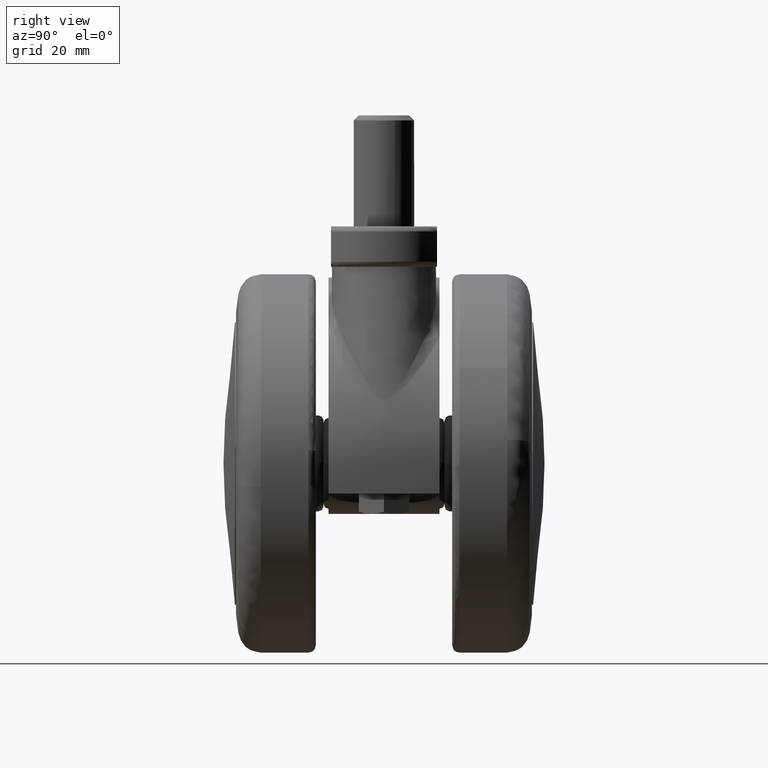
[diagram: clean part render]
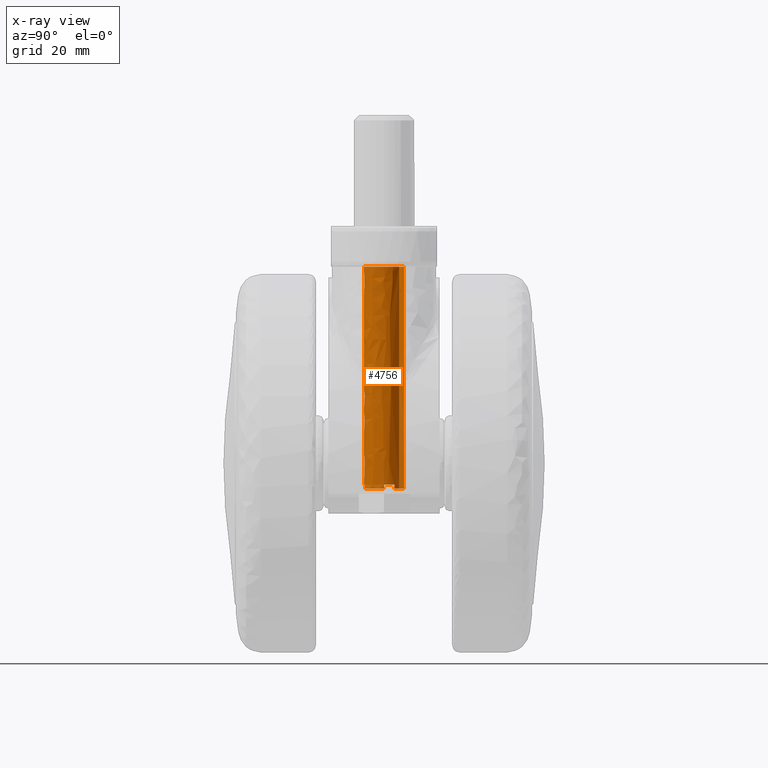
[diagram: x-ray — body ghosted, one internal face saturated and labeled with its STEP entity id]
A machine part, right view, then the same camera in x-ray: the body is ghosted and one INTERNAL B-rep face — a face not visible from any outside direction — is saturated and labeled: STEP entity #4756.
In plain terms, the highlighted face is a freeform B-spline surface patch.
Its self-contained STEP definition (entity closure, byte-faithful):
#4520=CARTESIAN_POINT('',(22.603179484488194,3.037014417407290,40.100000000000001));
#4521=CARTESIAN_POINT('',(23.920511686677187,1.907862002674398,40.100000000000009));
#4522=CARTESIAN_POINT('',(23.996192886327432,0.174477549461344,40.100000000000009));
#4523=CARTESIAN_POINT('',(24.170670435788775,-3.821715336866087,40.100000000000001));
#4524=CARTESIAN_POINT('',(20.174477549461340,-3.996192886327430,40.100000000000009));
#4525=CARTESIAN_POINT('',(16.178284663133912,-4.170670435788773,40.100000000000001));
#4526=CARTESIAN_POINT('',(16.003807113672568,-0.174477549461344,40.100000000000009));
#4527=CARTESIAN_POINT('',(15.829329564211232,3.821715336866087,40.100000000000001));
#4528=CARTESIAN_POINT('',(19.825522450538660,3.996192886327430,40.100000000000009));
#4529=CARTESIAN_POINT('',(22.603179484488194,3.037014417407290,-6.127500000000005));
#4530=CARTESIAN_POINT('',(23.920511686677187,1.907862002674398,-6.127500000000006));
#4531=CARTESIAN_POINT('',(23.996192886327432,0.174477549461344,-6.127500000000005));
#4532=CARTESIAN_POINT('',(24.170670435788775,-3.821715336866087,-6.127500000000005));
#4533=CARTESIAN_POINT('',(20.174477549461340,-3.996192886327430,-6.127500000000005));
#4534=CARTESIAN_POINT('',(16.178284663133912,-4.170670435788773,-6.127500000000005));
#4535=CARTESIAN_POINT('',(16.003807113672568,-0.174477549461344,-6.127500000000005));
#4536=CARTESIAN_POINT('',(15.829329564211232,3.821715336866087,-6.127500000000005));
#4537=CARTESIAN_POINT('',(19.825522450538660,3.996192886327430,-6.127500000000005));
#4545=(BOUNDED_SURFACE()B_SPLINE_SURFACE(2,1,((#4520,#4529),(#4521,#4530),(#4522,#4531),(#4523,#4532),(#4524,#4533),(#4525,#4534),(#4526,#4535),(#4527,#4536),(#4528,#4537)),.UNSPECIFIED.,.F.,.F.,.U.)B_SPLINE_SURFACE_WITH_KNOTS((3,2,2,2,3),(2,2),(0.0,3.446256838944149,10.073673836913670,16.701090834883189,23.328507832852701),(0.0,46.227500000000020),.UNSPECIFIED.)GEOMETRIC_REPRESENTATION_ITEM()RATIONAL_B_SPLINE_SURFACE(((0.853787705168325,0.853787705168325),(0.847695526217005,0.847695526217005),(1.0,1.0),(0.707106781186548,0.707106781186548),(1.0,1.0),(0.707106781186548,0.707106781186548),(1.0,1.0),(0.707106781186548,0.707106781186548),(1.0,1.0)))REPRESENTATION_ITEM('')SURFACE());
#4546=CARTESIAN_POINT('',(22.603179484484180,3.037014417410734,-4.999999999999999));
#4547=VERTEX_POINT('',#4546);
#4548=CARTESIAN_POINT('',(23.450066424360351,2.024115033169200,-5.0));
#4549=VERTEX_POINT('',#4548);
#4550=CARTESIAN_POINT('',(22.603179484484187,3.037014417410734,-4.999999999999999));
#4551=CARTESIAN_POINT('',(23.111367996836709,2.601420202902212,-5.000000000000001));
#4552=CARTESIAN_POINT('',(23.450066424360330,2.024115033169190,-5.0));
#4560=(BOUNDED_CURVE()B_SPLINE_CURVE(2,(#4550,#4551,#4552),.UNSPECIFIED.,.F.,.U.)B_SPLINE_CURVE_WITH_KNOTS((3,3),(0.838826426035904,1.0),.UNSPECIFIED.)CURVE()GEOMETRIC_REPRESENTATION_ITEM()RATIONAL_B_SPLINE_CURVE((0.942228882933247,0.957374106159129,1.0))REPRESENTATION_ITEM(''));
#4561=EDGE_CURVE('',#4547,#4549,#4560,.T.);
#4562=ORIENTED_EDGE('',*,*,#4561,.F.);
#4563=CARTESIAN_POINT('',(22.603176855445980,3.037016670889109,39.0));
#4564=VERTEX_POINT('',#4563);
#4565=CARTESIAN_POINT('',(22.603176855445980,3.037016670889109,39.0));
#4566=CARTESIAN_POINT('',(22.603179484484180,3.037014417410734,-4.999999999999999));
#4567=QUASI_UNIFORM_CURVE('',1,(#4565,#4566),.UNSPECIFIED.,.F.,.U.);
#4568=EDGE_CURVE('',#4564,#4547,#4567,.T.);
#4569=ORIENTED_EDGE('',*,*,#4568,.F.);
#4570=CARTESIAN_POINT('',(24.0,0.0,39.0));
#4571=VERTEX_POINT('',#4570);
#4572=CARTESIAN_POINT('',(24.0,0.0,39.0));
#4573=CARTESIAN_POINT('',(24.0,1.839730625046044,38.999999999999986));
#4574=CARTESIAN_POINT('',(22.603176855445973,3.037016670889109,38.999999999999993));
#4582=(BOUNDED_CURVE()B_SPLINE_CURVE(2,(#4572,#4573,#4574),.UNSPECIFIED.,.F.,.U.)B_SPLINE_CURVE_WITH_KNOTS((3,3),(0.0,0.136589111455534),.UNSPECIFIED.)CURVE()GEOMETRIC_REPRESENTATION_ITEM()RATIONAL_B_SPLINE_CURVE((1.0,0.839975901963677,0.854812198825391))REPRESENTATION_ITEM(''));
#4583=EDGE_CURVE('',#4571,#4564,#4582,.T.);
#4584=ORIENTED_EDGE('',*,*,#4583,.F.);
#4585=CARTESIAN_POINT('',(16.0,0.0,39.0));
#4586=VERTEX_POINT('',#4585);
#4587=CARTESIAN_POINT('',(16.0,0.0,39.0));
#4588=CARTESIAN_POINT('',(15.999999999999998,-4.000000000000000,39.000000000000007));
#4589=CARTESIAN_POINT('',(20.0,-4.0,39.0));
#4590=CARTESIAN_POINT('',(23.999999999999996,-4.000000000000000,39.000000000000007));
#4591=CARTESIAN_POINT('',(24.0,0.0,39.0));
#4599=(BOUNDED_CURVE()B_SPLINE_CURVE(2,(#4587,#4588,#4589,#4590,#4591),.UNSPECIFIED.,.F.,.U.)B_SPLINE_CURVE_WITH_KNOTS((3,2,3),(0.500000000000000,0.750000000000000,1.0),.UNSPECIFIED.)CURVE()GEOMETRIC_REPRESENTATION_ITEM()RATIONAL_B_SPLINE_CURVE((1.0,0.707106781186548,1.0,0.707106781186548,1.0))REPRESENTATION_ITEM(''));
#4600=EDGE_CURVE('',#4586,#4571,#4599,.T.);
#4601=ORIENTED_EDGE('',*,*,#4600,.F.);
#4602=CARTESIAN_POINT('',(19.825522450356001,3.996192886319456,39.0));
#4603=VERTEX_POINT('',#4602);
#4604=CARTESIAN_POINT('',(19.825522450356001,3.996192886319455,39.0));
#4605=CARTESIAN_POINT('',(16.000000000000004,3.829166968668858,39.000000000000007));
#4606=CARTESIAN_POINT('',(16.0,0.0,39.0));
#4614=(BOUNDED_CURVE()B_SPLINE_CURVE(2,(#4604,#4605,#4606),.UNSPECIFIED.,.F.,.U.)B_SPLINE_CURVE_WITH_KNOTS((3,3),(0.257645461446137,0.500000000000000),.UNSPECIFIED.)CURVE()GEOMETRIC_REPRESENTATION_ITEM()RATIONAL_B_SPLINE_CURVE((0.982633425852628,0.716063996435640,1.0))REPRESENTATION_ITEM(''));
#4615=EDGE_CURVE('',#4603,#4586,#4614,.T.);
#4616=ORIENTED_EDGE('',*,*,#4615,.F.);
#4617=CARTESIAN_POINT('',(19.825522450530720,3.996192886327084,-4.999999999999999));
#4618=VERTEX_POINT('',#4617);
#4619=CARTESIAN_POINT('',(19.825522450356001,3.996192886319456,39.0));
#4620=CARTESIAN_POINT('',(19.825522450530720,3.996192886327084,-4.999999999999999));
#4621=QUASI_UNIFORM_CURVE('',1,(#4619,#4620),.UNSPECIFIED.,.F.,.U.);
#4622=EDGE_CURVE('',#4603,#4618,#4621,.T.);
#4623=ORIENTED_EDGE('',*,*,#4622,.T.);
#4624=CARTESIAN_POINT('',(16.549933575639699,2.024115033169200,-5.0));
#4625=VERTEX_POINT('',#4624);
#4626=CARTESIAN_POINT('',(16.549933575639681,2.024115033169212,-5.0));
#4627=CARTESIAN_POINT('',(17.651234169029905,3.901261409793176,-4.999999999999999));
#4628=CARTESIAN_POINT('',(19.825522450530720,3.996192886327084,-4.999999999999999));
#4636=(BOUNDED_CURVE()B_SPLINE_CURVE(2,(#4626,#4627,#4628),.UNSPECIFIED.,.F.,.U.)B_SPLINE_CURVE_WITH_KNOTS((3,3),(0.0,0.478173893076030),.UNSPECIFIED.)CURVE()GEOMETRIC_REPRESENTATION_ITEM()RATIONAL_B_SPLINE_CURVE((1.0,0.873536404868235,0.988959168202658))REPRESENTATION_ITEM(''));
#4637=EDGE_CURVE('',#4625,#4618,#4636,.T.);
#4638=ORIENTED_EDGE('',*,*,#4637,.F.);
#4639=CARTESIAN_POINT('',(16.549933575639699,2.024115033169200,-4.200000000000000));
#4640=VERTEX_POINT('',#4639);
#4641=CARTESIAN_POINT('',(16.549933575639699,2.024115033169200,-4.200000000000000));
#4642=CARTESIAN_POINT('',(16.549933575639699,2.024115033169200,-5.0));
#4643=QUASI_UNIFORM_CURVE('',1,(#4641,#4642),.UNSPECIFIED.,.F.,.U.);
#4644=EDGE_CURVE('',#4640,#4625,#4643,.T.);
#4645=ORIENTED_EDGE('',*,*,#4644,.F.);
#4646=CARTESIAN_POINT('',(16.0,0.0,-4.200000000000000));
#4647=VERTEX_POINT('',#4646);
#4648=CARTESIAN_POINT('',(16.0,0.0,-4.200000000000000));
#4649=CARTESIAN_POINT('',(15.999999999999998,1.086763482564792,-4.200000000000000));
#4650=CARTESIAN_POINT('',(16.549933575639681,2.024115033169212,-4.200000000000000));
#4658=(BOUNDED_CURVE()B_SPLINE_CURVE(2,(#4648,#4649,#4650),.UNSPECIFIED.,.F.,.U.)CURVE()GEOMETRIC_REPRESENTATION_ITEM()QUASI_UNIFORM_CURVE()RATIONAL_B_SPLINE_CURVE((1.0,0.965017255309479,1.0))REPRESENTATION_ITEM(''));
#4659=EDGE_CURVE('',#4647,#4640,#4658,.T.);
#4660=ORIENTED_EDGE('',*,*,#4659,.F.);
#4661=CARTESIAN_POINT('',(16.0,0.0,-5.0));
#4662=VERTEX_POINT('',#4661);
#4663=CARTESIAN_POINT('',(16.0,0.0,-4.200000000000000));
#4664=CARTESIAN_POINT('',(16.0,0.0,-5.0));
#4665=QUASI_UNIFORM_CURVE('',1,(#4663,#4664),.UNSPECIFIED.,.F.,.U.);
#4666=EDGE_CURVE('',#4647,#4662,#4665,.T.);
#4667=ORIENTED_EDGE('',*,*,#4666,.T.);
#4668=CARTESIAN_POINT('',(18.632064327445502,-3.758823219539975,-5.0));
#4669=VERTEX_POINT('',#4668);
#4670=CARTESIAN_POINT('',(18.632064327445502,-3.758823219539976,-5.0));
#4671=CARTESIAN_POINT('',(15.999999999999998,-2.800945055104374,-5.000000000000001));
#4672=CARTESIAN_POINT('',(16.0,0.0,-5.0));
#4680=(BOUNDED_CURVE()B_SPLINE_CURVE(2,(#4670,#4671,#4672),.UNSPECIFIED.,.F.,.U.)CURVE()GEOMETRIC_REPRESENTATION_ITEM()QUASI_UNIFORM_CURVE()RATIONAL_B_SPLINE_CURVE((1.0,0.819140988517430,1.0))REPRESENTATION_ITEM(''));
#4681=EDGE_CURVE('',#4669,#4662,#4680,.T.);
#4682=ORIENTED_EDGE('',*,*,#4681,.F.);
#4683=CARTESIAN_POINT('',(18.632064327445502,-3.758823219539975,-4.200000000000000));
#4684=VERTEX_POINT('',#4683);
#4685=CARTESIAN_POINT('',(18.632064327445502,-3.758823219539975,-4.200000000000000));
#4686=CARTESIAN_POINT('',(18.632064327445502,-3.758823219539975,-5.0));
#4687=QUASI_UNIFORM_CURVE('',1,(#4685,#4686),.UNSPECIFIED.,.F.,.U.);
#4688=EDGE_CURVE('',#4684,#4669,#4687,.T.);
#4689=ORIENTED_EDGE('',*,*,#4688,.F.);
#4690=CARTESIAN_POINT('',(21.367935672554999,-3.758823219539790,-4.200000000000000));
#4691=VERTEX_POINT('',#4690);
#4692=CARTESIAN_POINT('',(21.367935672554999,-3.758823219539793,-4.200000000000000));
#4693=CARTESIAN_POINT('',(20.000000000000284,-4.256651368126472,-4.199999999999999));
#4694=CARTESIAN_POINT('',(18.632064327445502,-3.758823219539976,-4.200000000000000));
#4702=(BOUNDED_CURVE()B_SPLINE_CURVE(2,(#4692,#4693,#4694),.UNSPECIFIED.,.F.,.U.)CURVE()GEOMETRIC_REPRESENTATION_ITEM()QUASI_UNIFORM_CURVE()RATIONAL_B_SPLINE_CURVE((1.0,0.939705804884971,1.0))REPRESENTATION_ITEM(''));
#4703=EDGE_CURVE('',#4691,#4684,#4702,.T.);
#4704=ORIENTED_EDGE('',*,*,#4703,.F.);
#4705=CARTESIAN_POINT('',(21.367935672554999,-3.758823219539790,-5.0));
#4706=VERTEX_POINT('',#4705);
#4707=CARTESIAN_POINT('',(21.367935672554999,-3.758823219539790,-4.200000000000000));
#4708=CARTESIAN_POINT('',(21.367935672554999,-3.758823219539790,-5.0));
#4709=QUASI_UNIFORM_CURVE('',1,(#4707,#4708),.UNSPECIFIED.,.F.,.U.);
#4710=EDGE_CURVE('',#4691,#4706,#4709,.T.);
#4711=ORIENTED_EDGE('',*,*,#4710,.T.);
#4712=CARTESIAN_POINT('',(24.0,8.085112E-015,-5.0));
#4713=VERTEX_POINT('',#4712);
#4714=CARTESIAN_POINT('',(24.0,0.0,-5.0));
#4715=CARTESIAN_POINT('',(23.999999999999996,-2.800945055103976,-5.0));
#4716=CARTESIAN_POINT('',(21.367935672554999,-3.758823219539793,-5.0));
#4724=(BOUNDED_CURVE()B_SPLINE_CURVE(2,(#4714,#4715,#4716),.UNSPECIFIED.,.F.,.U.)CURVE()GEOMETRIC_REPRESENTATION_ITEM()QUASI_UNIFORM_CURVE()RATIONAL_B_SPLINE_CURVE((1.0,0.819140988517468,1.0))REPRESENTATION_ITEM(''));
#4725=EDGE_CURVE('',#4713,#4706,#4724,.T.);
#4726=ORIENTED_EDGE('',*,*,#4725,.F.);
#4727=CARTESIAN_POINT('',(24.0,8.085112E-015,-4.200000000000000));
#4728=VERTEX_POINT('',#4727);
#4729=CARTESIAN_POINT('',(24.0,8.085112E-015,-4.200000000000000));
#4730=CARTESIAN_POINT('',(24.0,8.085112E-015,-5.0));
#4731=QUASI_UNIFORM_CURVE('',1,(#4729,#4730),.UNSPECIFIED.,.F.,.U.);
#4732=EDGE_CURVE('',#4728,#4713,#4731,.T.);
#4733=ORIENTED_EDGE('',*,*,#4732,.F.);
#4734=CARTESIAN_POINT('',(23.450066424360351,2.024115033169200,-4.200000000000000));
#4735=VERTEX_POINT('',#4734);
#4736=CARTESIAN_POINT('',(23.450066424360330,2.024115033169190,-4.200000000000000));
#4737=CARTESIAN_POINT('',(24.0,1.086763482564777,-4.200000000000000));
#4738=CARTESIAN_POINT('',(24.0,0.0,-4.200000000000000));
#4746=(BOUNDED_CURVE()B_SPLINE_CURVE(2,(#4736,#4737,#4738),.UNSPECIFIED.,.F.,.U.)CURVE()GEOMETRIC_REPRESENTATION_ITEM()QUASI_UNIFORM_CURVE()RATIONAL_B_SPLINE_CURVE((1.0,0.965017255309480,1.0))REPRESENTATION_ITEM(''));
#4747=EDGE_CURVE('',#4735,#4728,#4746,.T.);
#4748=ORIENTED_EDGE('',*,*,#4747,.F.);
#4749=CARTESIAN_POINT('',(23.450066424360351,2.024115033169200,-4.200000000000000));
#4750=CARTESIAN_POINT('',(23.450066424360351,2.024115033169200,-5.0));
#4751=QUASI_UNIFORM_CURVE('',1,(#4749,#4750),.UNSPECIFIED.,.F.,.U.);
#4752=EDGE_CURVE('',#4735,#4549,#4751,.T.);
#4753=ORIENTED_EDGE('',*,*,#4752,.T.);
#4754=EDGE_LOOP('',(#4562,#4569,#4584,#4601,#4616,#4623,#4638,#4645,#4660,#4667,#4682,#4689,#4704,#4711,#4726,#4733,#4748,#4753));
#4755=FACE_OUTER_BOUND('',#4754,.T.);
#4756=ADVANCED_FACE('',(#4755),#4545,.T.);